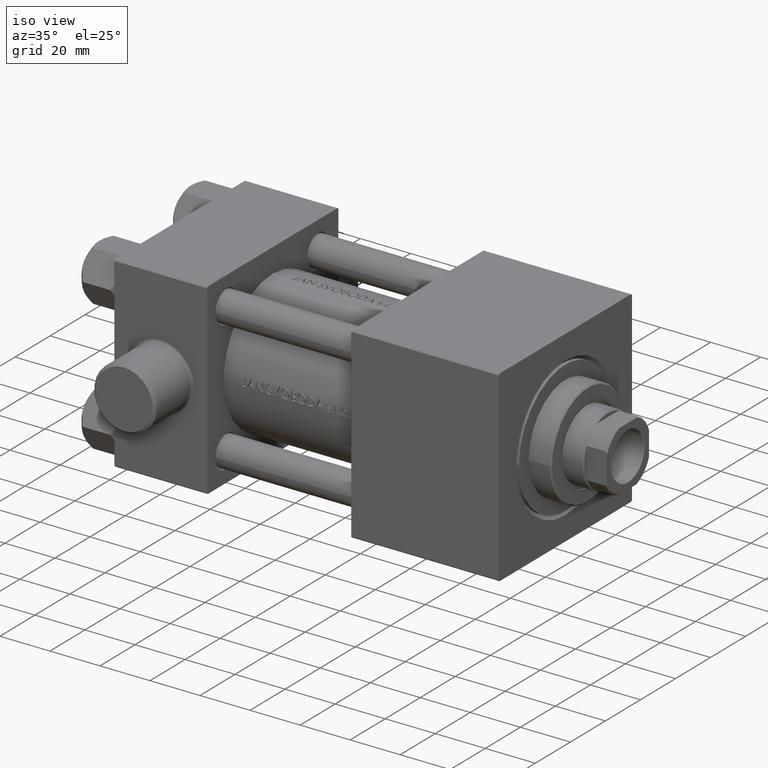
[diagram: clean part render]
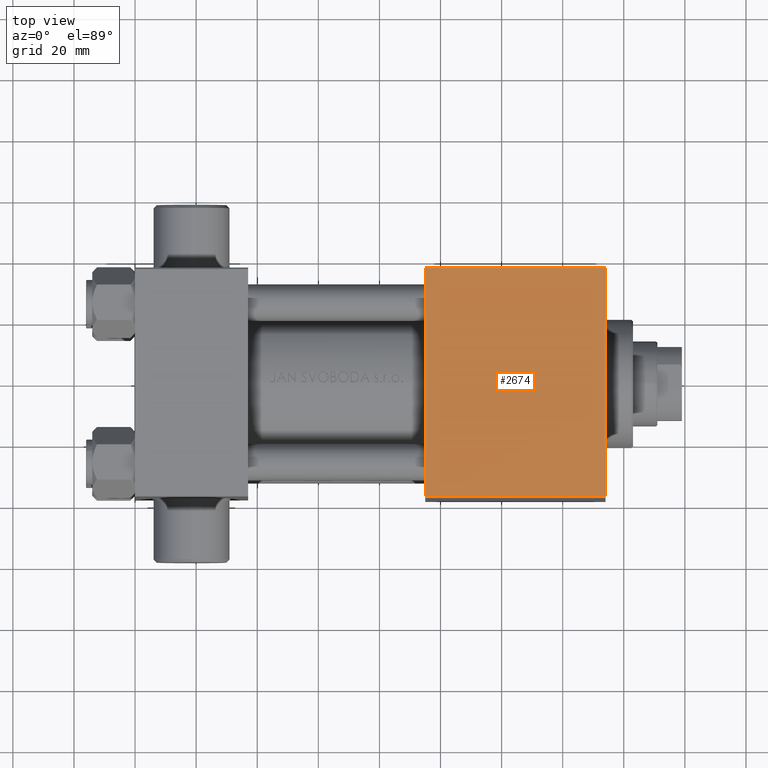
[diagram: tour spotlight — one face highlighted and labeled with its STEP entity id]
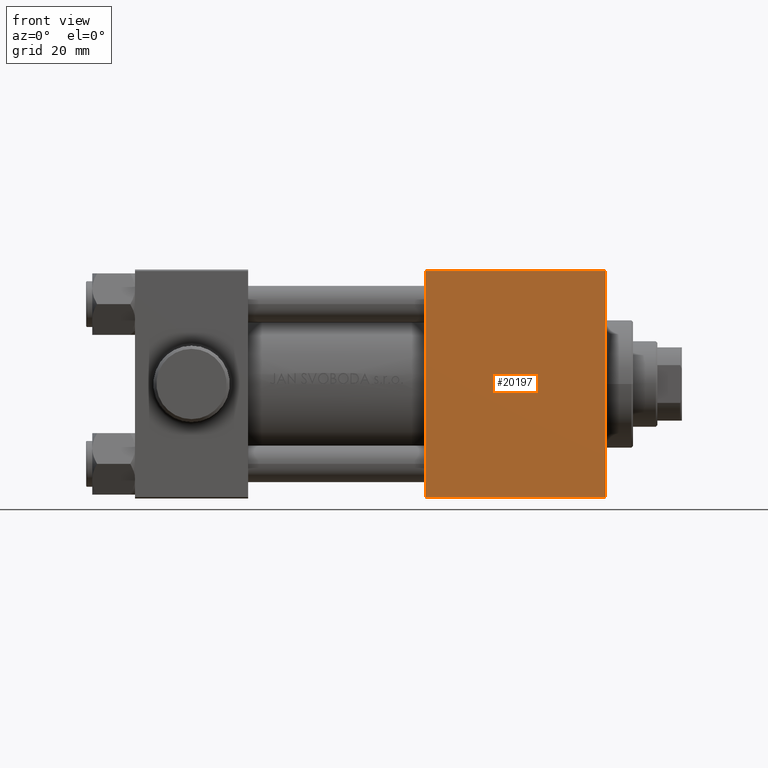
[diagram: tour spotlight — one face highlighted and labeled with its STEP entity id]
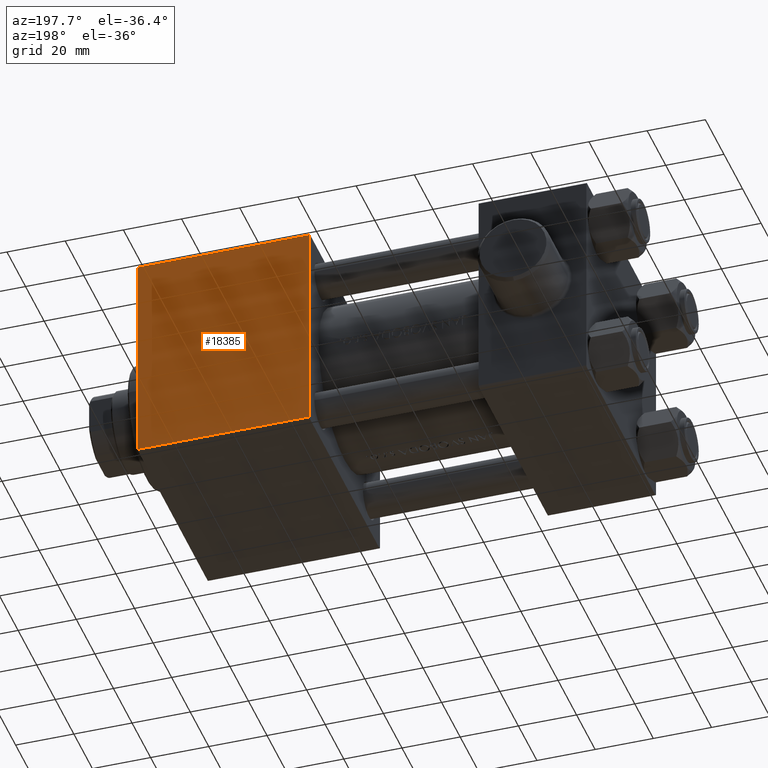
[diagram: tour spotlight — one face highlighted and labeled with its STEP entity id]
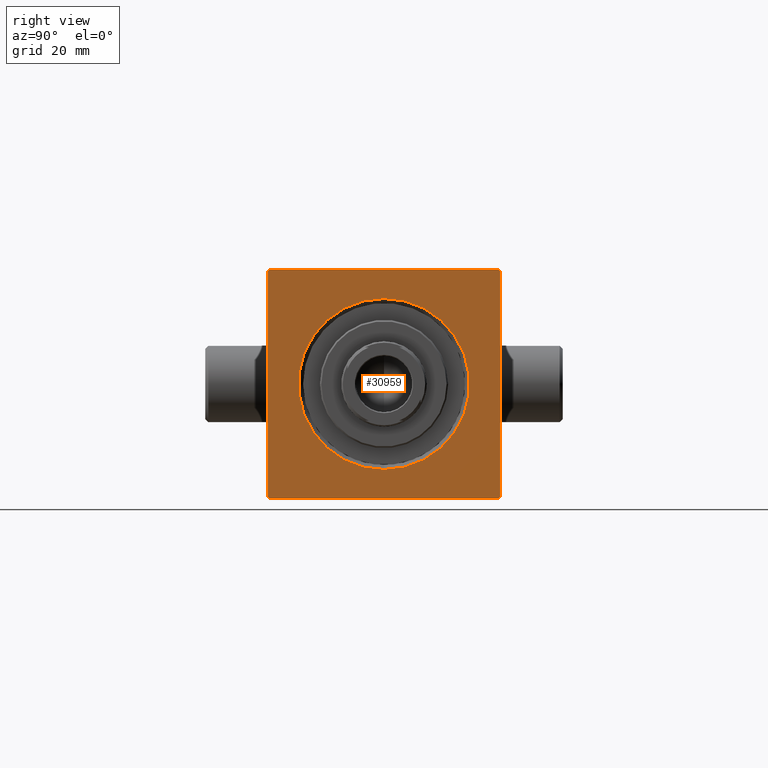
[diagram: tour spotlight — one face highlighted and labeled with its STEP entity id]
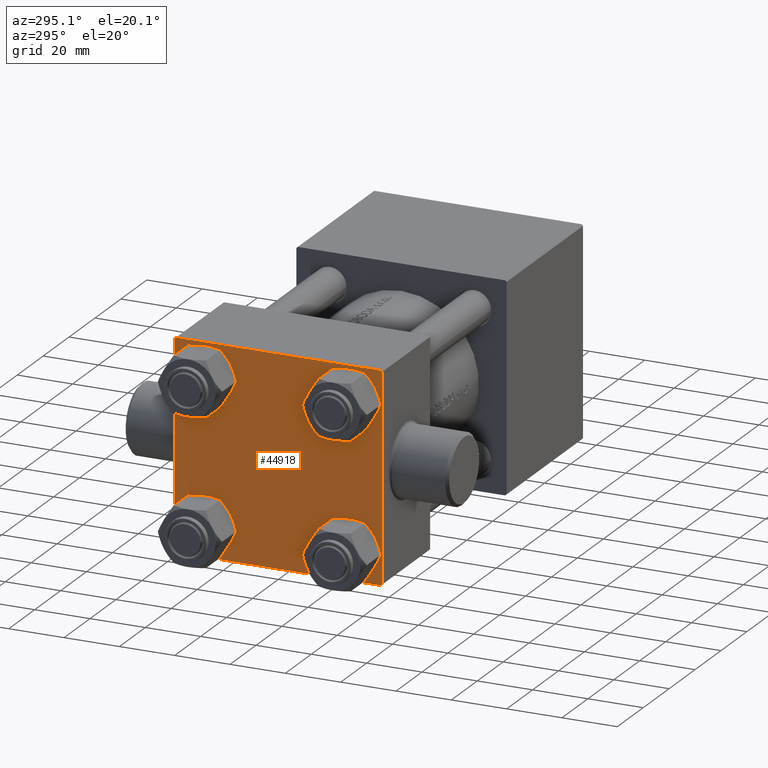
[diagram: tour spotlight — one face highlighted and labeled with its STEP entity id]
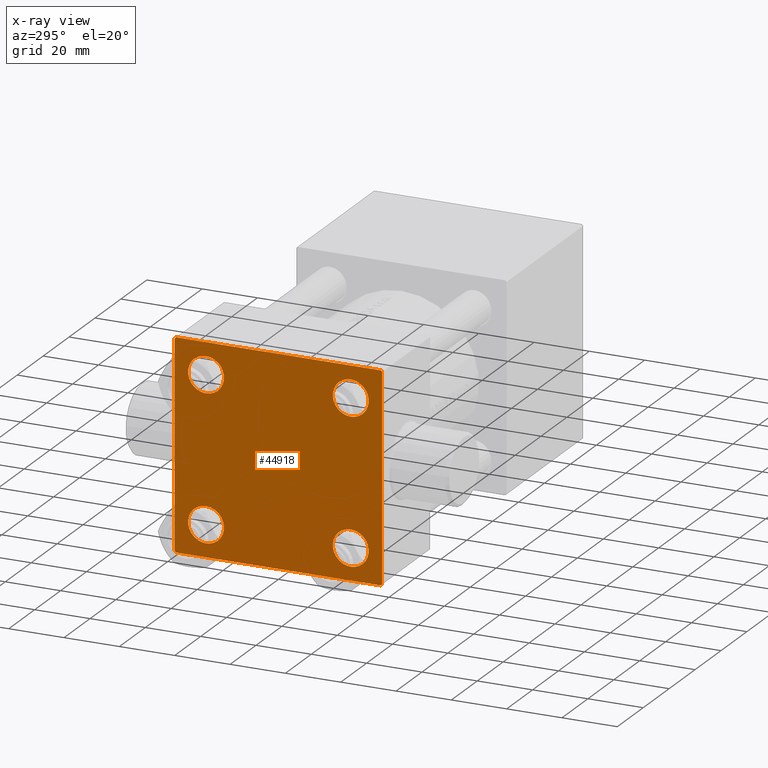
[diagram: x-ray of the same camera — body ghosted, this tour face saturated]
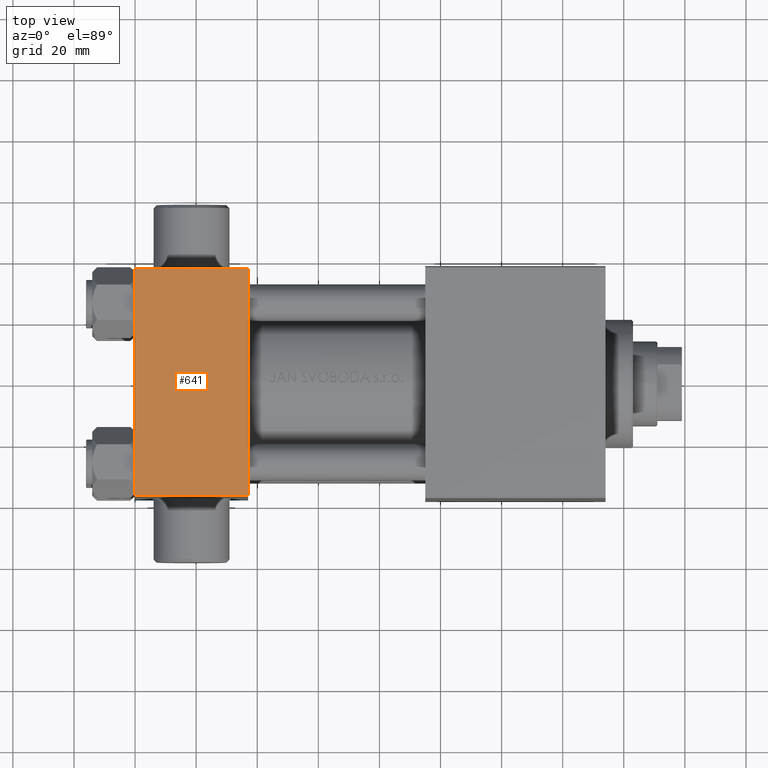
[diagram: tour spotlight — one face highlighted and labeled with its STEP entity id]
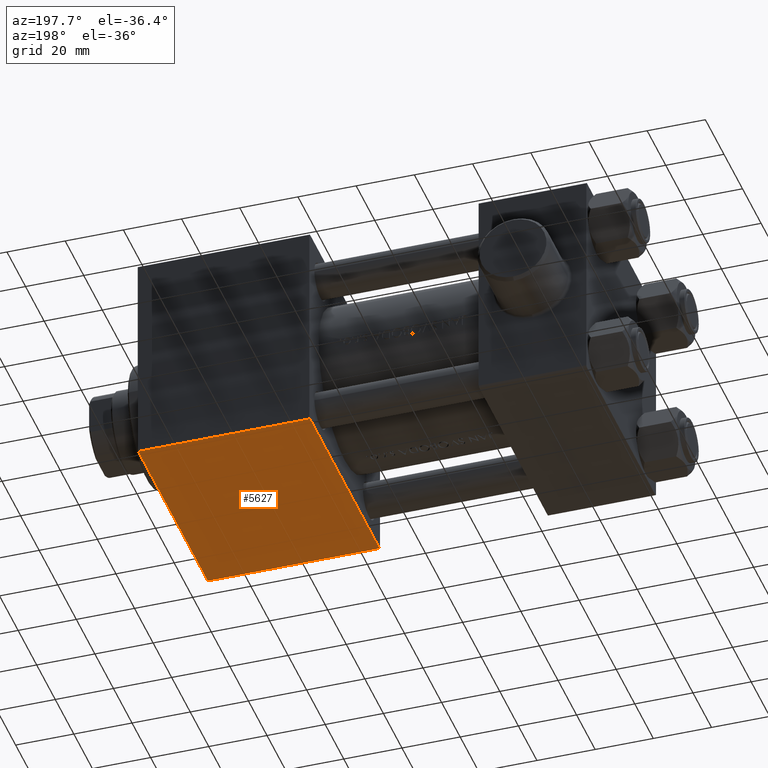
[diagram: tour spotlight — one face highlighted and labeled with its STEP entity id]
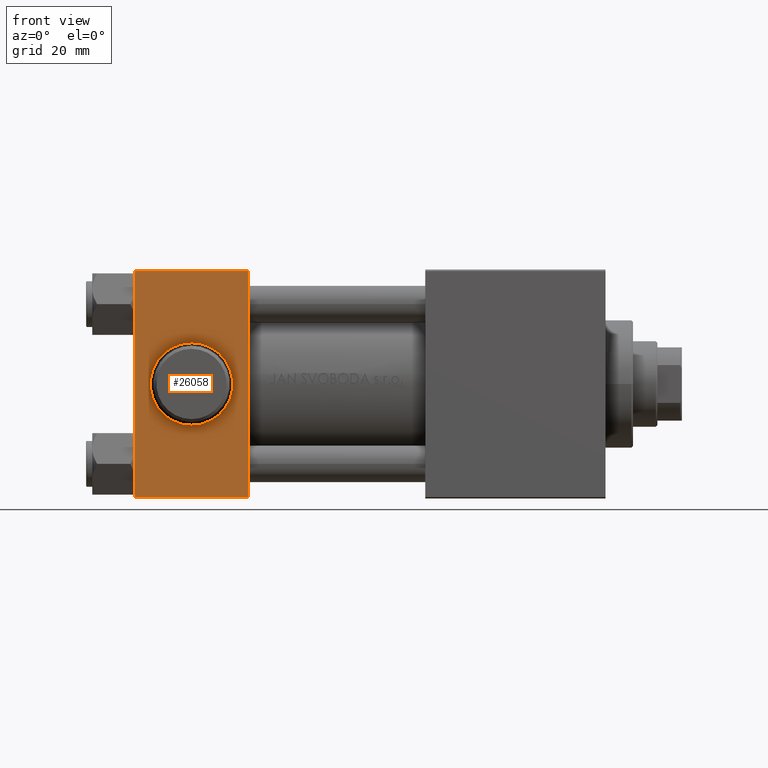
[diagram: tour spotlight — one face highlighted and labeled with its STEP entity id]
A machine part: a face-by-face anatomy tour. The part has 1057 B-rep faces; the first image is the clean iso view, then the 8 largest visible faces are spotlighted one at a time (largest first), each with its STEP entity span.

Face 1 — top view, entity #2674. In plain terms, the highlighted planar face has unit normal (0, 0, -1).
Definition (entity closure, byte-faithful):
#2674 = ADVANCED_FACE ( 'NONE', ( #45476 ), #3592, .F. ) ;
#3592 = PLANE ( 'NONE',  #46206 ) ;
#4361 = LINE ( 'NONE', #32205, #23169 ) ;
#5219 = ORIENTED_EDGE ( 'NONE', *, *, #24112, .T. ) ;
#5784 = DIRECTION ( 'NONE',  ( 1.000000000000000000, 0.000000000000000000, 0.000000000000000000 ) ) ;
#6253 = CARTESIAN_POINT ( 'NONE',  ( 154.0000000000000000, 38.00000000000000000, 37.50000000000000711 ) ) ;
#9294 = LINE ( 'NONE', #23544, #22207 ) ;
#11278 = EDGE_CURVE ( 'NONE', #35255, #27404, #41551, .T. ) ;
#11332 = EDGE_CURVE ( 'NONE', #22699, #27404, #9294, .T. ) ;
#13426 = CARTESIAN_POINT ( 'NONE',  ( 154.0000000000000000, 38.00000000000000000, 37.50000000000000711 ) ) ;
#13968 = CARTESIAN_POINT ( 'NONE',  ( 154.0000000000000000, 37.50000000000002842, 37.50000000000000711 ) ) ;
#14007 = VECTOR ( 'NONE', #38035, 1000.000000000000000 ) ;
#14992 = VECTOR ( 'NONE', #19175, 1000.000000000000000 ) ;
#19175 = DIRECTION ( 'NONE',  ( -1.000000000000000000, 0.000000000000000000, 0.000000000000000000 ) ) ;
#20934 = VERTEX_POINT ( 'NONE', #45438 ) ;
#21586 = DIRECTION ( 'NONE',  ( 0.000000000000000000, 9.130123557772669567E-17, -1.000000000000000000 ) ) ;
#22207 = VECTOR ( 'NONE', #5784, 1000.000000000000000 ) ;
#22699 = VERTEX_POINT ( 'NONE', #27256 ) ;
#23169 = VECTOR ( 'NONE', #25870, 1000.000000000000000 ) ;
#23544 = CARTESIAN_POINT ( 'NONE',  ( 154.0000000000000000, -37.50000000000002842, 37.50000000000000000 ) ) ;
#24112 = EDGE_CURVE ( 'NONE', #35255, #20934, #40454, .T. ) ;
#25870 = DIRECTION ( 'NONE',  ( 0.000000000000000000, -1.000000000000000000, -9.130123557772669567E-17 ) ) ;
#25946 = EDGE_CURVE ( 'NONE', #20934, #22699, #4361, .T. ) ;
#27256 = CARTESIAN_POINT ( 'NONE',  ( 95.00000000000000000, -37.50000000000002842, 37.50000000000000000 ) ) ;
#27404 = VERTEX_POINT ( 'NONE', #43308 ) ;
#29936 = ORIENTED_EDGE ( 'NONE', *, *, #25946, .T. ) ;
#32205 = CARTESIAN_POINT ( 'NONE',  ( 95.00000000000000000, 38.00000000000000000, 37.50000000000000711 ) ) ;
#35255 = VERTEX_POINT ( 'NONE', #13968 ) ;
#36007 = CARTESIAN_POINT ( 'NONE',  ( 95.00000000000000000, 37.50000000000002842, 37.50000000000000711 ) ) ;
#37923 = EDGE_LOOP ( 'NONE', ( #29936, #40770, #43279, #5219 ) ) ;
#38035 = DIRECTION ( 'NONE',  ( 0.000000000000000000, -1.000000000000000000, -9.130123557772669567E-17 ) ) ;
#40454 = LINE ( 'NONE', #36007, #14992 ) ;
#40770 = ORIENTED_EDGE ( 'NONE', *, *, #11332, .T. ) ;
#41551 = LINE ( 'NONE', #6253, #14007 ) ;
#42872 = DIRECTION ( 'NONE',  ( 0.000000000000000000, 1.000000000000000000, 9.130123557772669567E-17 ) ) ;
#43279 = ORIENTED_EDGE ( 'NONE', *, *, #11278, .F. ) ;
#43308 = CARTESIAN_POINT ( 'NONE',  ( 154.0000000000000000, -37.50000000000002842, 37.50000000000000000 ) ) ;
#45438 = CARTESIAN_POINT ( 'NONE',  ( 95.00000000000000000, 37.50000000000002842, 37.50000000000000711 ) ) ;
#45476 = FACE_OUTER_BOUND ( 'NONE', #37923, .T. ) ;
#46206 = AXIS2_PLACEMENT_3D ( 'NONE', #13426, #21586, #42872 ) ;

Face 2 — front view, entity #20197. In plain terms, the highlighted planar face has unit normal (0, 1, -0).
Definition (entity closure, byte-faithful):
#781 = DIRECTION ( 'NONE',  ( 0.000000000000000000, -9.251858538542971581E-17, -1.000000000000000000 ) ) ;
#2131 = DIRECTION ( 'NONE',  ( 0.000000000000000000, 1.000000000000000000, -9.251858538542971581E-17 ) ) ;
#2218 = VERTEX_POINT ( 'NONE', #35935 ) ;
#2368 = FACE_OUTER_BOUND ( 'NONE', #43804, .T. ) ;
#2753 = CARTESIAN_POINT ( 'NONE',  ( 154.0000000000000000, -38.00000000000000711, -37.00000000000001421 ) ) ;
#5029 = DIRECTION ( 'NONE',  ( -1.000000000000000000, 0.000000000000000000, 0.000000000000000000 ) ) ;
#5644 = DIRECTION ( 'NONE',  ( 0.000000000000000000, 9.251858538542971581E-17, 1.000000000000000000 ) ) ;
#6710 = CARTESIAN_POINT ( 'NONE',  ( 154.0000000000000000, -38.00000000000000711, -37.00000000000001421 ) ) ;
#7422 = AXIS2_PLACEMENT_3D ( 'NONE', #20132, #2131, #5644 ) ;
#7709 = LINE ( 'NONE', #18467, #17430 ) ;
#8146 = EDGE_CURVE ( 'NONE', #2218, #25390, #25341, .T. ) ;
#9329 = EDGE_CURVE ( 'NONE', #2218, #22866, #33765, .T. ) ;
#17430 = VECTOR ( 'NONE', #44191, 1000.000000000000000 ) ;
#18467 = CARTESIAN_POINT ( 'NONE',  ( 95.00000000000000000, -38.00000000000000000, 37.50000000000000000 ) ) ;
#20132 = CARTESIAN_POINT ( 'NONE',  ( 154.0000000000000000, -38.00000000000000000, 37.50000000000000000 ) ) ;
#20197 = ADVANCED_FACE ( 'NONE', ( #2368 ), #37660, .F. ) ;
#22866 = VERTEX_POINT ( 'NONE', #36560 ) ;
#24095 = VECTOR ( 'NONE', #781, 1000.000000000000000 ) ;
#25341 = LINE ( 'NONE', #33050, #24095 ) ;
#25390 = VERTEX_POINT ( 'NONE', #6710 ) ;
#25789 = VERTEX_POINT ( 'NONE', #37230 ) ;
#27454 = ORIENTED_EDGE ( 'NONE', *, *, #39614, .T. ) ;
#29808 = CARTESIAN_POINT ( 'NONE',  ( 154.0000000000000000, -38.00000000000000000, 37.00000000000002842 ) ) ;
#33050 = CARTESIAN_POINT ( 'NONE',  ( 154.0000000000000000, -38.00000000000000000, 37.50000000000000000 ) ) ;
#33550 = EDGE_CURVE ( 'NONE', #22866, #25789, #7709, .T. ) ;
#33765 = LINE ( 'NONE', #29808, #34846 ) ;
#34770 = LINE ( 'NONE', #2753, #40381 ) ;
#34846 = VECTOR ( 'NONE', #5029, 1000.000000000000000 ) ;
#35935 = CARTESIAN_POINT ( 'NONE',  ( 154.0000000000000000, -38.00000000000000000, 37.00000000000002842 ) ) ;
#36560 = CARTESIAN_POINT ( 'NONE',  ( 95.00000000000000000, -38.00000000000000000, 37.00000000000002842 ) ) ;
#37230 = CARTESIAN_POINT ( 'NONE',  ( 95.00000000000000000, -38.00000000000000711, -37.00000000000001421 ) ) ;
#37660 = PLANE ( 'NONE',  #7422 ) ;
#39614 = EDGE_CURVE ( 'NONE', #25789, #25390, #34770, .T. ) ;
#40381 = VECTOR ( 'NONE', #45092, 1000.000000000000000 ) ;
#40855 = ORIENTED_EDGE ( 'NONE', *, *, #33550, .T. ) ;
#41669 = ORIENTED_EDGE ( 'NONE', *, *, #9329, .T. ) ;
#43804 = EDGE_LOOP ( 'NONE', ( #40855, #27454, #44085, #41669 ) ) ;
#44085 = ORIENTED_EDGE ( 'NONE', *, *, #8146, .F. ) ;
#44191 = DIRECTION ( 'NONE',  ( 0.000000000000000000, -9.251858538542971581E-17, -1.000000000000000000 ) ) ;
#45092 = DIRECTION ( 'NONE',  ( 1.000000000000000000, 0.000000000000000000, 0.000000000000000000 ) ) ;

Face 3 — auxiliary view, entity #18385. In plain terms, the highlighted planar face has unit normal (0, 1, 0).
Definition (entity closure, byte-faithful):
#1647 = CARTESIAN_POINT ( 'NONE',  ( 154.0000000000000000, 38.00000000000000000, 37.00000000000006395 ) ) ;
#1946 = DIRECTION ( 'NONE',  ( -0.000000000000000000, 1.000000000000000000, 0.000000000000000000 ) ) ;
#3200 = VERTEX_POINT ( 'NONE', #23305 ) ;
#4135 = VERTEX_POINT ( 'NONE', #1647 ) ;
#6518 = ORIENTED_EDGE ( 'NONE', *, *, #31131, .T. ) ;
#7835 = ORIENTED_EDGE ( 'NONE', *, *, #18404, .T. ) ;
#9402 = CARTESIAN_POINT ( 'NONE',  ( 154.0000000000000000, 38.00000000000000000, 37.50000000000000711 ) ) ;
#9798 = EDGE_CURVE ( 'NONE', #4135, #18204, #42131, .T. ) ;
#10869 = CARTESIAN_POINT ( 'NONE',  ( 154.0000000000000000, 38.00000000000000000, -37.00000000000000711 ) ) ;
#11860 = AXIS2_PLACEMENT_3D ( 'NONE', #30695, #1946, #41221 ) ;
#13399 = LINE ( 'NONE', #16204, #20844 ) ;
#13608 = DIRECTION ( 'NONE',  ( 0.000000000000000000, 0.000000000000000000, -1.000000000000000000 ) ) ;
#13886 = DIRECTION ( 'NONE',  ( 0.000000000000000000, 0.000000000000000000, -1.000000000000000000 ) ) ;
#16204 = CARTESIAN_POINT ( 'NONE',  ( 154.0000000000000000, 38.00000000000000000, 37.00000000000006395 ) ) ;
#16665 = FACE_OUTER_BOUND ( 'NONE', #43637, .T. ) ;
#16895 = PLANE ( 'NONE',  #11860 ) ;
#17084 = DIRECTION ( 'NONE',  ( -1.000000000000000000, 0.000000000000000000, 0.000000000000000000 ) ) ;
#17151 = CARTESIAN_POINT ( 'NONE',  ( 95.00000000000000000, 38.00000000000000000, 37.50000000000000711 ) ) ;
#17974 = ORIENTED_EDGE ( 'NONE', *, *, #9798, .T. ) ;
#18095 = VECTOR ( 'NONE', #17084, 1000.000000000000000 ) ;
#18204 = VERTEX_POINT ( 'NONE', #10869 ) ;
#18385 = ADVANCED_FACE ( 'NONE', ( #16665 ), #16895, .T. ) ;
#18404 = EDGE_CURVE ( 'NONE', #33899, #4135, #13399, .T. ) ;
#19790 = CARTESIAN_POINT ( 'NONE',  ( 95.00000000000000000, 38.00000000000000000, 37.00000000000006395 ) ) ;
#20599 = CARTESIAN_POINT ( 'NONE',  ( 154.0000000000000000, 38.00000000000000000, -37.00000000000000711 ) ) ;
#20718 = VECTOR ( 'NONE', #13608, 1000.000000000000000 ) ;
#20844 = VECTOR ( 'NONE', #41687, 1000.000000000000000 ) ;
#23305 = CARTESIAN_POINT ( 'NONE',  ( 95.00000000000000000, 38.00000000000000000, -37.00000000000000711 ) ) ;
#25565 = VECTOR ( 'NONE', #13886, 1000.000000000000000 ) ;
#30695 = CARTESIAN_POINT ( 'NONE',  ( 154.0000000000000000, 38.00000000000000000, 37.50000000000000711 ) ) ;
#31131 = EDGE_CURVE ( 'NONE', #18204, #3200, #31812, .T. ) ;
#31812 = LINE ( 'NONE', #20599, #18095 ) ;
#33899 = VERTEX_POINT ( 'NONE', #19790 ) ;
#41221 = DIRECTION ( 'NONE',  ( 0.000000000000000000, -0.000000000000000000, 1.000000000000000000 ) ) ;
#41687 = DIRECTION ( 'NONE',  ( 1.000000000000000000, 0.000000000000000000, 0.000000000000000000 ) ) ;
#42131 = LINE ( 'NONE', #9402, #20718 ) ;
#43011 = EDGE_CURVE ( 'NONE', #33899, #3200, #45942, .T. ) ;
#43637 = EDGE_LOOP ( 'NONE', ( #43760, #7835, #17974, #6518 ) ) ;
#43760 = ORIENTED_EDGE ( 'NONE', *, *, #43011, .F. ) ;
#45942 = LINE ( 'NONE', #17151, #25565 ) ;

Face 4 — right view, entity #30959. In plain terms, the highlighted planar face has unit normal (-1, 0, 0).
Definition (entity closure, byte-faithful):
#199 = VERTEX_POINT ( 'NONE', #24886 ) ;
#781 = DIRECTION ( 'NONE',  ( 0.000000000000000000, -9.251858538542971581E-17, -1.000000000000000000 ) ) ;
#1038 = LINE ( 'NONE', #32598, #3217 ) ;
#1441 = DIRECTION ( 'NONE',  ( -1.000000000000000000, -0.000000000000000000, 0.000000000000000000 ) ) ;
#1647 = CARTESIAN_POINT ( 'NONE',  ( 154.0000000000000000, 38.00000000000000000, 37.00000000000006395 ) ) ;
#2218 = VERTEX_POINT ( 'NONE', #35935 ) ;
#3187 = AXIS2_PLACEMENT_3D ( 'NONE', #18758, #1441, #33007 ) ;
#3217 = VECTOR ( 'NONE', #15304, 1000.000000000000114 ) ;
#4135 = VERTEX_POINT ( 'NONE', #1647 ) ;
#5163 = ORIENTED_EDGE ( 'NONE', *, *, #8146, .T. ) ;
#6253 = CARTESIAN_POINT ( 'NONE',  ( 154.0000000000000000, 38.00000000000000000, 37.50000000000000711 ) ) ;
#6710 = CARTESIAN_POINT ( 'NONE',  ( 154.0000000000000000, -38.00000000000000711, -37.00000000000001421 ) ) ;
#6932 = ORIENTED_EDGE ( 'NONE', *, *, #35068, .T. ) ;
#8146 = EDGE_CURVE ( 'NONE', #2218, #25390, #25341, .T. ) ;
#8158 = DIRECTION ( 'NONE',  ( -0.000000000000000000, -0.7071067811865474617, -0.7071067811865474617 ) ) ;
#8446 = ORIENTED_EDGE ( 'NONE', *, *, #9798, .F. ) ;
#8692 = CARTESIAN_POINT ( 'NONE',  ( 154.0000000000000000, -37.50000000000001421, -37.50000000000000000 ) ) ;
#8883 = VERTEX_POINT ( 'NONE', #33973 ) ;
#9402 = CARTESIAN_POINT ( 'NONE',  ( 154.0000000000000000, 38.00000000000000000, 37.50000000000000711 ) ) ;
#9798 = EDGE_CURVE ( 'NONE', #4135, #18204, #42131, .T. ) ;
#9890 = CIRCLE ( 'NONE', #24069, 27.99999999999994316 ) ;
#10869 = CARTESIAN_POINT ( 'NONE',  ( 154.0000000000000000, 38.00000000000000000, -37.00000000000000711 ) ) ;
#11022 = VERTEX_POINT ( 'NONE', #17524 ) ;
#11278 = EDGE_CURVE ( 'NONE', #35255, #27404, #41551, .T. ) ;
#11679 = EDGE_LOOP ( 'NONE', ( #18221, #19891 ) ) ;
#12172 = EDGE_CURVE ( 'NONE', #25390, #18690, #33469, .T. ) ;
#12590 = CARTESIAN_POINT ( 'NONE',  ( 154.0000000000000000, -38.00000000000000000, 37.00000000000002842 ) ) ;
#13046 = LINE ( 'NONE', #26381, #44813 ) ;
#13528 = AXIS2_PLACEMENT_3D ( 'NONE', #17008, #30573, #42034 ) ;
#13608 = DIRECTION ( 'NONE',  ( 0.000000000000000000, 0.000000000000000000, -1.000000000000000000 ) ) ;
#13968 = CARTESIAN_POINT ( 'NONE',  ( 154.0000000000000000, 37.50000000000002842, 37.50000000000000711 ) ) ;
#14007 = VECTOR ( 'NONE', #38035, 1000.000000000000000 ) ;
#15242 = FACE_OUTER_BOUND ( 'NONE', #39760, .T. ) ;
#15304 = DIRECTION ( 'NONE',  ( -0.000000000000000000, 0.7071067811865474617, 0.7071067811865474617 ) ) ;
#16142 = ORIENTED_EDGE ( 'NONE', *, *, #32678, .T. ) ;
#17008 = CARTESIAN_POINT ( 'NONE',  ( 154.0000000000000000, 0.000000000000000000, 0.000000000000000000 ) ) ;
#17252 = CARTESIAN_POINT ( 'NONE',  ( 154.0000000000000000, -37.50000000000001421, -37.50000000000000000 ) ) ;
#17524 = CARTESIAN_POINT ( 'NONE',  ( 154.0000000000000000, 37.50000000000000000, -37.50000000000000711 ) ) ;
#18204 = VERTEX_POINT ( 'NONE', #10869 ) ;
#18221 = ORIENTED_EDGE ( 'NONE', *, *, #39619, .T. ) ;
#18690 = VERTEX_POINT ( 'NONE', #17252 ) ;
#18758 = CARTESIAN_POINT ( 'NONE',  ( 154.0000000000000000, 0.000000000000000000, 0.000000000000000000 ) ) ;
#19819 = CARTESIAN_POINT ( 'NONE',  ( 154.0000000000000000, 37.50000000000002842, 37.50000000000000711 ) ) ;
#19891 = ORIENTED_EDGE ( 'NONE', *, *, #31180, .T. ) ;
#20524 = DIRECTION ( 'NONE',  ( 0.000000000000000000, -0.7071067811865671127, 0.7071067811865279218 ) ) ;
#20718 = VECTOR ( 'NONE', #13608, 1000.000000000000000 ) ;
#21464 = EDGE_CURVE ( 'NONE', #11022, #18690, #13046, .T. ) ;
#21510 = CARTESIAN_POINT ( 'NONE',  ( 154.0000000000000000, 0.000000000000000000, 0.000000000000000000 ) ) ;
#22463 = ORIENTED_EDGE ( 'NONE', *, *, #21464, .F. ) ;
#24069 = AXIS2_PLACEMENT_3D ( 'NONE', #21510, #42106, #28310 ) ;
#24095 = VECTOR ( 'NONE', #781, 1000.000000000000000 ) ;
#24886 = CARTESIAN_POINT ( 'NONE',  ( 154.0000000000000000, 3.429011037612582176E-15, 27.99999999999994316 ) ) ;
#25341 = LINE ( 'NONE', #33050, #24095 ) ;
#25390 = VERTEX_POINT ( 'NONE', #6710 ) ;
#25930 = LINE ( 'NONE', #12590, #28524 ) ;
#26381 = CARTESIAN_POINT ( 'NONE',  ( 154.0000000000000000, 38.00000000000000000, -37.50000000000000711 ) ) ;
#27068 = LINE ( 'NONE', #19819, #27912 ) ;
#27404 = VERTEX_POINT ( 'NONE', #43308 ) ;
#27912 = VECTOR ( 'NONE', #20524, 1000.000000000000000 ) ;
#28310 = DIRECTION ( 'NONE',  ( 0.000000000000000000, 0.000000000000000000, 1.000000000000000000 ) ) ;
#28524 = VECTOR ( 'NONE', #8158, 1000.000000000000114 ) ;
#29281 = PLANE ( 'NONE',  #3187 ) ;
#29973 = EDGE_CURVE ( 'NONE', #27404, #2218, #25930, .T. ) ;
#30573 = DIRECTION ( 'NONE',  ( -1.000000000000000000, -0.000000000000000000, 0.000000000000000000 ) ) ;
#30959 = ADVANCED_FACE ( 'NONE', ( #43546, #15242 ), #29281, .F. ) ;
#31180 = EDGE_CURVE ( 'NONE', #199, #8883, #9890, .T. ) ;
#32598 = CARTESIAN_POINT ( 'NONE',  ( 154.0000000000000000, 38.00000000000000000, -37.00000000000000711 ) ) ;
#32678 = EDGE_CURVE ( 'NONE', #11022, #18204, #1038, .T. ) ;
#33007 = DIRECTION ( 'NONE',  ( 0.000000000000000000, 0.000000000000000000, 1.000000000000000000 ) ) ;
#33050 = CARTESIAN_POINT ( 'NONE',  ( 154.0000000000000000, -38.00000000000000000, 37.50000000000000000 ) ) ;
#33469 = LINE ( 'NONE', #8692, #34812 ) ;
#33702 = DIRECTION ( 'NONE',  ( 0.000000000000000000, 0.7071067811865524577, -0.7071067811865426878 ) ) ;
#33973 = CARTESIAN_POINT ( 'NONE',  ( 154.0000000000000000, 0.000000000000000000, -27.99999999999994316 ) ) ;
#34669 = ORIENTED_EDGE ( 'NONE', *, *, #12172, .T. ) ;
#34812 = VECTOR ( 'NONE', #33702, 1000.000000000000000 ) ;
#35068 = EDGE_CURVE ( 'NONE', #4135, #35255, #27068, .T. ) ;
#35255 = VERTEX_POINT ( 'NONE', #13968 ) ;
#35935 = CARTESIAN_POINT ( 'NONE',  ( 154.0000000000000000, -38.00000000000000000, 37.00000000000002842 ) ) ;
#38035 = DIRECTION ( 'NONE',  ( 0.000000000000000000, -1.000000000000000000, -9.130123557772669567E-17 ) ) ;
#38969 = ORIENTED_EDGE ( 'NONE', *, *, #11278, .T. ) ;
#38990 = ORIENTED_EDGE ( 'NONE', *, *, #29973, .T. ) ;
#39619 = EDGE_CURVE ( 'NONE', #8883, #199, #41120, .T. ) ;
#39760 = EDGE_LOOP ( 'NONE', ( #5163, #34669, #22463, #16142, #8446, #6932, #38969, #38990 ) ) ;
#41120 = CIRCLE ( 'NONE', #13528, 27.99999999999994316 ) ;
#41551 = LINE ( 'NONE', #6253, #14007 ) ;
#41558 = DIRECTION ( 'NONE',  ( 0.000000000000000000, -1.000000000000000000, 9.130123557772667102E-17 ) ) ;
#42034 = DIRECTION ( 'NONE',  ( 0.000000000000000000, 0.000000000000000000, 1.000000000000000000 ) ) ;
#42106 = DIRECTION ( 'NONE',  ( -1.000000000000000000, -0.000000000000000000, 0.000000000000000000 ) ) ;
#42131 = LINE ( 'NONE', #9402, #20718 ) ;
#43308 = CARTESIAN_POINT ( 'NONE',  ( 154.0000000000000000, -37.50000000000002842, 37.50000000000000000 ) ) ;
#43546 = FACE_BOUND ( 'NONE', #11679, .T. ) ;
#44813 = VECTOR ( 'NONE', #41558, 1000.000000000000000 ) ;

Face 5 — auxiliary view, entity #44918. An x-ray twin of the same camera follows (body ghosted, this face saturated) — the face is partly hidden behind the body. In plain terms, the highlighted planar face has unit normal (-1, 0, 0).
Definition (entity closure, byte-faithful):
#5 = CIRCLE ( 'NONE', #13472, 6.500000000000015987 ) ;
#230 = DIRECTION ( 'NONE',  ( 0.000000000000000000, 0.000000000000000000, 1.000000000000000000 ) ) ;
#334 = ORIENTED_EDGE ( 'NONE', *, *, #16383, .T. ) ;
#942 = DIRECTION ( 'NONE',  ( 0.000000000000000000, 0.000000000000000000, 1.000000000000000000 ) ) ;
#1243 = VERTEX_POINT ( 'NONE', #44293 ) ;
#2133 = CARTESIAN_POINT ( 'NONE',  ( 0.000000000000000000, -37.50000000000000711, 37.49999999999999289 ) ) ;
#2324 = CARTESIAN_POINT ( 'NONE',  ( 0.000000000000000000, -37.50000000000000711, 36.99999999999999289 ) ) ;
#2681 = VERTEX_POINT ( 'NONE', #24867 ) ;
#2758 = AXIS2_PLACEMENT_3D ( 'NONE', #45284, #9498, #13241 ) ;
#2796 = CARTESIAN_POINT ( 'NONE',  ( 0.000000000000000000, 26.14999999999999858, -32.65000000000001990 ) ) ;
#3091 = ORIENTED_EDGE ( 'NONE', *, *, #3116, .T. ) ;
#3116 = EDGE_CURVE ( 'NONE', #1243, #9773, #9740, .T. ) ;
#4384 = FACE_BOUND ( 'NONE', #32631, .T. ) ;
#4477 = ORIENTED_EDGE ( 'NONE', *, *, #18518, .T. ) ;
#5317 = FACE_BOUND ( 'NONE', #12360, .T. ) ;
#5672 = ORIENTED_EDGE ( 'NONE', *, *, #29605, .F. ) ;
#5688 = AXIS2_PLACEMENT_3D ( 'NONE', #24771, #7005, #17755 ) ;
#6190 = CARTESIAN_POINT ( 'NONE',  ( 0.000000000000000000, 36.99999999999997868, -37.50000000000000000 ) ) ;
#6298 = CARTESIAN_POINT ( 'NONE',  ( 0.000000000000000000, 26.14999999999999858, 32.65000000000002700 ) ) ;
#6338 = DIRECTION ( 'NONE',  ( 0.000000000000000000, 9.251858538542971581E-17, -1.000000000000000000 ) ) ;
#6603 = VERTEX_POINT ( 'NONE', #6190 ) ;
#6948 = VERTEX_POINT ( 'NONE', #2796 ) ;
#7005 = DIRECTION ( 'NONE',  ( 1.000000000000000000, -0.000000000000000000, 0.000000000000000000 ) ) ;
#7076 = EDGE_CURVE ( 'NONE', #11533, #38853, #5, .T. ) ;
#7201 = EDGE_CURVE ( 'NONE', #38853, #11533, #35118, .T. ) ;
#7303 = CARTESIAN_POINT ( 'NONE',  ( 0.000000000000000000, 36.99999999999999289, 37.50000000000000000 ) ) ;
#7798 = ORIENTED_EDGE ( 'NONE', *, *, #12188, .F. ) ;
#7925 = CIRCLE ( 'NONE', #5688, 6.500000000000023093 ) ;
#8124 = DIRECTION ( 'NONE',  ( -1.000000000000000000, 0.000000000000000000, -0.000000000000000000 ) ) ;
#8591 = PLANE ( 'NONE',  #38314 ) ;
#8962 = CARTESIAN_POINT ( 'NONE',  ( 0.000000000000000000, 37.49999999999999289, 37.50000000000000000 ) ) ;
#9386 = LINE ( 'NONE', #2133, #10202 ) ;
#9498 = DIRECTION ( 'NONE',  ( 1.000000000000000000, -0.000000000000000000, 0.000000000000000000 ) ) ;
#9718 = VERTEX_POINT ( 'NONE', #44033 ) ;
#9740 = LINE ( 'NONE', #34976, #24578 ) ;
#9773 = VERTEX_POINT ( 'NONE', #46121 ) ;
#10202 = VECTOR ( 'NONE', #6338, 1000.000000000000000 ) ;
#10385 = LINE ( 'NONE', #15039, #22882 ) ;
#10906 = CARTESIAN_POINT ( 'NONE',  ( 0.000000000000000000, -26.14999999999999147, -26.15000000000000924 ) ) ;
#11167 = EDGE_CURVE ( 'NONE', #24403, #13328, #7925, .T. ) ;
#11345 = CARTESIAN_POINT ( 'NONE',  ( 0.000000000000000000, -26.14999999999999147, 26.15000000000000924 ) ) ;
#11533 = VERTEX_POINT ( 'NONE', #16020 ) ;
#12188 = EDGE_CURVE ( 'NONE', #37868, #9773, #9386, .T. ) ;
#12280 = EDGE_CURVE ( 'NONE', #36256, #42092, #44551, .T. ) ;
#12360 = EDGE_LOOP ( 'NONE', ( #32515, #30600 ) ) ;
#12547 = EDGE_CURVE ( 'NONE', #2681, #6948, #28854, .T. ) ;
#12558 = FACE_BOUND ( 'NONE', #28920, .T. ) ;
#12654 = EDGE_CURVE ( 'NONE', #42092, #36256, #25139, .T. ) ;
#13241 = DIRECTION ( 'NONE',  ( 0.000000000000000000, 0.000000000000000000, 1.000000000000000000 ) ) ;
#13328 = VERTEX_POINT ( 'NONE', #20838 ) ;
#13472 = AXIS2_PLACEMENT_3D ( 'NONE', #13729, #46014, #20513 ) ;
#13729 = CARTESIAN_POINT ( 'NONE',  ( 0.000000000000000000, -26.14999999999999147, -26.15000000000000924 ) ) ;
#13931 = EDGE_CURVE ( 'NONE', #13328, #24403, #30377, .T. ) ;
#15039 = CARTESIAN_POINT ( 'NONE',  ( 0.000000000000000000, 37.49999999999999289, 37.50000000000000000 ) ) ;
#15972 = ORIENTED_EDGE ( 'NONE', *, *, #19927, .T. ) ;
#15975 = DIRECTION ( 'NONE',  ( 0.000000000000000000, -1.000000000000000000, -9.251858538542971581E-17 ) ) ;
#16020 = CARTESIAN_POINT ( 'NONE',  ( 0.000000000000000000, -26.14999999999999147, -19.64999999999999503 ) ) ;
#16195 = AXIS2_PLACEMENT_3D ( 'NONE', #27503, #16512, #41533 ) ;
#16260 = AXIS2_PLACEMENT_3D ( 'NONE', #33204, #32973, #942 ) ;
#16383 = EDGE_CURVE ( 'NONE', #6948, #2681, #36400, .T. ) ;
#16512 = DIRECTION ( 'NONE',  ( 1.000000000000000000, -0.000000000000000000, 0.000000000000000000 ) ) ;
#17755 = DIRECTION ( 'NONE',  ( 0.000000000000000000, 0.000000000000000000, 1.000000000000000000 ) ) ;
#17888 = CARTESIAN_POINT ( 'NONE',  ( 0.000000000000000000, -26.14999999999999147, 32.65000000000003411 ) ) ;
#18141 = ORIENTED_EDGE ( 'NONE', *, *, #27543, .T. ) ;
#18518 = EDGE_CURVE ( 'NONE', #35510, #9718, #43941, .T. ) ;
#18965 = VECTOR ( 'NONE', #23412, 1000.000000000000114 ) ;
#19342 = DIRECTION ( 'NONE',  ( -0.000000000000000000, 0.000000000000000000, 1.000000000000000000 ) ) ;
#19375 = DIRECTION ( 'NONE',  ( 0.000000000000000000, 0.7071067811865474617, -0.7071067811865474617 ) ) ;
#19600 = ORIENTED_EDGE ( 'NONE', *, *, #38194, .T. ) ;
#19927 = EDGE_CURVE ( 'NONE', #37868, #24648, #42914, .T. ) ;
#20107 = EDGE_LOOP ( 'NONE', ( #19600, #21015, #18141, #3091, #7798, #15972, #5672, #4477 ) ) ;
#20513 = DIRECTION ( 'NONE',  ( 0.000000000000000000, 0.000000000000000000, 1.000000000000000000 ) ) ;
#20838 = CARTESIAN_POINT ( 'NONE',  ( 0.000000000000000000, 26.14999999999999858, 19.64999999999998437 ) ) ;
#21015 = ORIENTED_EDGE ( 'NONE', *, *, #34177, .T. ) ;
#21083 = ORIENTED_EDGE ( 'NONE', *, *, #7076, .T. ) ;
#21994 = ORIENTED_EDGE ( 'NONE', *, *, #13931, .T. ) ;
#22882 = VECTOR ( 'NONE', #29310, 1000.000000000000000 ) ;
#23046 = CARTESIAN_POINT ( 'NONE',  ( 0.000000000000000000, -26.14999999999999147, 19.64999999999999147 ) ) ;
#23080 = CARTESIAN_POINT ( 'NONE',  ( 0.000000000000000000, -37.00000000000000711, 37.49999999999999289 ) ) ;
#23412 = DIRECTION ( 'NONE',  ( -0.000000000000000000, -0.7071067811865474617, -0.7071067811865474617 ) ) ;
#24403 = VERTEX_POINT ( 'NONE', #6298 ) ;
#24578 = VECTOR ( 'NONE', #45064, 1000.000000000000000 ) ;
#24648 = VERTEX_POINT ( 'NONE', #23080 ) ;
#24681 = AXIS2_PLACEMENT_3D ( 'NONE', #10906, #36355, #35898 ) ;
#24771 = CARTESIAN_POINT ( 'NONE',  ( 0.000000000000000000, 26.14999999999999858, 26.15000000000000213 ) ) ;
#24867 = CARTESIAN_POINT ( 'NONE',  ( 0.000000000000000000, 26.14999999999999858, -19.64999999999998792 ) ) ;
#25139 = CIRCLE ( 'NONE', #28126, 6.500000000000023093 ) ;
#25421 = VECTOR ( 'NONE', #26913, 1000.000000000000000 ) ;
#26031 = VERTEX_POINT ( 'NONE', #29391 ) ;
#26124 = FACE_BOUND ( 'NONE', #39706, .T. ) ;
#26913 = DIRECTION ( 'NONE',  ( 0.000000000000000000, -1.000000000000000000, -9.251858538542972814E-17 ) ) ;
#27503 = CARTESIAN_POINT ( 'NONE',  ( 0.000000000000000000, 26.14999999999999858, 26.15000000000000213 ) ) ;
#27543 = EDGE_CURVE ( 'NONE', #6603, #1243, #43775, .T. ) ;
#28126 = AXIS2_PLACEMENT_3D ( 'NONE', #11345, #28658, #28881 ) ;
#28658 = DIRECTION ( 'NONE',  ( 1.000000000000000000, -0.000000000000000000, 0.000000000000000000 ) ) ;
#28852 = ORIENTED_EDGE ( 'NONE', *, *, #7201, .T. ) ;
#28854 = CIRCLE ( 'NONE', #2758, 6.500000000000015987 ) ;
#28881 = DIRECTION ( 'NONE',  ( 0.000000000000000000, 0.000000000000000000, 1.000000000000000000 ) ) ;
#28920 = EDGE_LOOP ( 'NONE', ( #38348, #21994 ) ) ;
#29310 = DIRECTION ( 'NONE',  ( 0.000000000000000000, 0.000000000000000000, -1.000000000000000000 ) ) ;
#29391 = CARTESIAN_POINT ( 'NONE',  ( 0.000000000000000000, 37.49999999999999289, -36.99999999999998579 ) ) ;
#29605 = EDGE_CURVE ( 'NONE', #35510, #24648, #37237, .T. ) ;
#29621 = AXIS2_PLACEMENT_3D ( 'NONE', #35310, #42808, #230 ) ;
#29810 = VECTOR ( 'NONE', #38945, 1000.000000000000114 ) ;
#30356 = CARTESIAN_POINT ( 'NONE',  ( 0.000000000000000000, 37.24999999999999289, 37.24999999999999289 ) ) ;
#30377 = CIRCLE ( 'NONE', #16195, 6.500000000000023093 ) ;
#30427 = CARTESIAN_POINT ( 'NONE',  ( 0.000000000000000000, 37.24999999999998579, -37.24999999999998579 ) ) ;
#30600 = ORIENTED_EDGE ( 'NONE', *, *, #12654, .T. ) ;
#30888 = LINE ( 'NONE', #30427, #18965 ) ;
#32515 = ORIENTED_EDGE ( 'NONE', *, *, #12280, .T. ) ;
#32601 = CARTESIAN_POINT ( 'NONE',  ( -0.000000000000000000, -37.25000000000000000, 37.25000000000000000 ) ) ;
#32631 = EDGE_LOOP ( 'NONE', ( #41798, #334 ) ) ;
#32973 = DIRECTION ( 'NONE',  ( 1.000000000000000000, -0.000000000000000000, 0.000000000000000000 ) ) ;
#33204 = CARTESIAN_POINT ( 'NONE',  ( 0.000000000000000000, 26.14999999999999858, -26.15000000000000213 ) ) ;
#34177 = EDGE_CURVE ( 'NONE', #26031, #6603, #30888, .T. ) ;
#34976 = CARTESIAN_POINT ( 'NONE',  ( 0.000000000000000000, -37.24999999999975842, -37.25000000000027001 ) ) ;
#35118 = CIRCLE ( 'NONE', #24681, 6.500000000000015987 ) ;
#35310 = CARTESIAN_POINT ( 'NONE',  ( 0.000000000000000000, -26.14999999999999147, 26.15000000000000924 ) ) ;
#35510 = VERTEX_POINT ( 'NONE', #7303 ) ;
#35898 = DIRECTION ( 'NONE',  ( 0.000000000000000000, 0.000000000000000000, 1.000000000000000000 ) ) ;
#36256 = VERTEX_POINT ( 'NONE', #17888 ) ;
#36355 = DIRECTION ( 'NONE',  ( 1.000000000000000000, -0.000000000000000000, 0.000000000000000000 ) ) ;
#36400 = CIRCLE ( 'NONE', #16260, 6.500000000000015987 ) ;
#37237 = LINE ( 'NONE', #8962, #44182 ) ;
#37323 = CARTESIAN_POINT ( 'NONE',  ( 0.000000000000000000, 0.000000000000000000, 0.000000000000000000 ) ) ;
#37868 = VERTEX_POINT ( 'NONE', #2324 ) ;
#38194 = EDGE_CURVE ( 'NONE', #9718, #26031, #10385, .T. ) ;
#38314 = AXIS2_PLACEMENT_3D ( 'NONE', #37323, #8124, #19342 ) ;
#38348 = ORIENTED_EDGE ( 'NONE', *, *, #11167, .T. ) ;
#38853 = VERTEX_POINT ( 'NONE', #46016 ) ;
#38945 = DIRECTION ( 'NONE',  ( -0.000000000000000000, 0.7071067811865474617, 0.7071067811865474617 ) ) ;
#39706 = EDGE_LOOP ( 'NONE', ( #21083, #28852 ) ) ;
#40259 = CARTESIAN_POINT ( 'NONE',  ( 0.000000000000000000, 37.49999999999999289, -37.50000000000000000 ) ) ;
#40992 = VECTOR ( 'NONE', #19375, 1000.000000000000114 ) ;
#41074 = FACE_OUTER_BOUND ( 'NONE', #20107, .T. ) ;
#41533 = DIRECTION ( 'NONE',  ( 0.000000000000000000, 0.000000000000000000, 1.000000000000000000 ) ) ;
#41798 = ORIENTED_EDGE ( 'NONE', *, *, #12547, .T. ) ;
#42092 = VERTEX_POINT ( 'NONE', #23046 ) ;
#42808 = DIRECTION ( 'NONE',  ( 1.000000000000000000, -0.000000000000000000, 0.000000000000000000 ) ) ;
#42914 = LINE ( 'NONE', #32601, #29810 ) ;
#43775 = LINE ( 'NONE', #40259, #25421 ) ;
#43941 = LINE ( 'NONE', #30356, #40992 ) ;
#44033 = CARTESIAN_POINT ( 'NONE',  ( 0.000000000000000000, 37.49999999999999289, 37.00000000000000000 ) ) ;
#44182 = VECTOR ( 'NONE', #15975, 1000.000000000000000 ) ;
#44293 = CARTESIAN_POINT ( 'NONE',  ( 0.000000000000000000, -37.00000000000002132, -37.50000000000000711 ) ) ;
#44551 = CIRCLE ( 'NONE', #29621, 6.500000000000023093 ) ;
#44918 = ADVANCED_FACE ( 'NONE', ( #5317, #26124, #4384, #12558, #41074 ), #8591, .T. ) ;
#45064 = DIRECTION ( 'NONE',  ( 0.000000000000000000, -0.7071067811865524577, 0.7071067811865426878 ) ) ;
#45284 = CARTESIAN_POINT ( 'NONE',  ( 0.000000000000000000, 26.14999999999999858, -26.15000000000000213 ) ) ;
#46014 = DIRECTION ( 'NONE',  ( 1.000000000000000000, -0.000000000000000000, 0.000000000000000000 ) ) ;
#46016 = CARTESIAN_POINT ( 'NONE',  ( 0.000000000000000000, -26.14999999999999147, -32.65000000000002700 ) ) ;
#46121 = CARTESIAN_POINT ( 'NONE',  ( 0.000000000000000000, -37.50000000000000000, -37.00000000000003553 ) ) ;

Face 6 — top view, entity #641. In plain terms, the highlighted planar face has unit normal (0, 0, -1).
Definition (entity closure, byte-faithful):
#641 = ADVANCED_FACE ( 'NONE', ( #25685 ), #22414, .F. ) ;
#715 = ORIENTED_EDGE ( 'NONE', *, *, #29501, .T. ) ;
#1040 = EDGE_CURVE ( 'NONE', #41134, #30050, #27951, .T. ) ;
#3935 = DIRECTION ( 'NONE',  ( 1.000000000000000000, 0.000000000000000000, 0.000000000000000000 ) ) ;
#5828 = ORIENTED_EDGE ( 'NONE', *, *, #29605, .T. ) ;
#7303 = CARTESIAN_POINT ( 'NONE',  ( 0.000000000000000000, 36.99999999999999289, 37.50000000000000000 ) ) ;
#8962 = CARTESIAN_POINT ( 'NONE',  ( 0.000000000000000000, 37.49999999999999289, 37.50000000000000000 ) ) ;
#11800 = VECTOR ( 'NONE', #38468, 1000.000000000000000 ) ;
#15975 = DIRECTION ( 'NONE',  ( 0.000000000000000000, -1.000000000000000000, -9.251858538542971581E-17 ) ) ;
#16658 = CARTESIAN_POINT ( 'NONE',  ( 37.00000000000000000, 36.99999999999999289, 37.50000000000000000 ) ) ;
#21166 = LINE ( 'NONE', #28636, #25497 ) ;
#22414 = PLANE ( 'NONE',  #25986 ) ;
#22884 = CARTESIAN_POINT ( 'NONE',  ( 37.00000000000000000, -37.00000000000000711, 37.49999999999999289 ) ) ;
#23080 = CARTESIAN_POINT ( 'NONE',  ( 0.000000000000000000, -37.00000000000000711, 37.49999999999999289 ) ) ;
#24489 = EDGE_CURVE ( 'NONE', #24648, #30050, #32230, .T. ) ;
#24648 = VERTEX_POINT ( 'NONE', #23080 ) ;
#25345 = DIRECTION ( 'NONE',  ( -1.000000000000000000, 0.000000000000000000, 0.000000000000000000 ) ) ;
#25497 = VECTOR ( 'NONE', #25345, 1000.000000000000000 ) ;
#25685 = FACE_OUTER_BOUND ( 'NONE', #26925, .T. ) ;
#25986 = AXIS2_PLACEMENT_3D ( 'NONE', #36429, #39950, #26150 ) ;
#26150 = DIRECTION ( 'NONE',  ( 0.000000000000000000, 1.000000000000000000, 9.251858538542971581E-17 ) ) ;
#26925 = EDGE_LOOP ( 'NONE', ( #5828, #35392, #31141, #715 ) ) ;
#27951 = LINE ( 'NONE', #38232, #11800 ) ;
#28636 = CARTESIAN_POINT ( 'NONE',  ( 0.000000000000000000, 36.99999999999999289, 37.50000000000000000 ) ) ;
#28730 = CARTESIAN_POINT ( 'NONE',  ( 37.00000000000000000, -37.00000000000000711, 37.49999999999999289 ) ) ;
#29501 = EDGE_CURVE ( 'NONE', #41134, #35510, #21166, .T. ) ;
#29605 = EDGE_CURVE ( 'NONE', #35510, #24648, #37237, .T. ) ;
#30050 = VERTEX_POINT ( 'NONE', #22884 ) ;
#31141 = ORIENTED_EDGE ( 'NONE', *, *, #1040, .F. ) ;
#32230 = LINE ( 'NONE', #28730, #35180 ) ;
#35180 = VECTOR ( 'NONE', #3935, 1000.000000000000000 ) ;
#35392 = ORIENTED_EDGE ( 'NONE', *, *, #24489, .T. ) ;
#35510 = VERTEX_POINT ( 'NONE', #7303 ) ;
#36429 = CARTESIAN_POINT ( 'NONE',  ( 37.00000000000000000, 37.49999999999999289, 37.50000000000000000 ) ) ;
#37237 = LINE ( 'NONE', #8962, #44182 ) ;
#38232 = CARTESIAN_POINT ( 'NONE',  ( 37.00000000000000000, 37.49999999999999289, 37.50000000000000000 ) ) ;
#38468 = DIRECTION ( 'NONE',  ( 0.000000000000000000, -1.000000000000000000, -9.251858538542971581E-17 ) ) ;
#39950 = DIRECTION ( 'NONE',  ( 0.000000000000000000, 9.251858538542971581E-17, -1.000000000000000000 ) ) ;
#41134 = VERTEX_POINT ( 'NONE', #16658 ) ;
#44182 = VECTOR ( 'NONE', #15975, 1000.000000000000000 ) ;

Face 7 — auxiliary view, entity #5627. In plain terms, the highlighted planar face has unit normal (0, -0, -1).
Definition (entity closure, byte-faithful):
#2259 = CARTESIAN_POINT ( 'NONE',  ( 154.0000000000000000, 37.50000000000000000, -37.50000000000000711 ) ) ;
#2311 = CARTESIAN_POINT ( 'NONE',  ( 95.00000000000000000, -37.50000000000001421, -37.50000000000000000 ) ) ;
#3016 = VECTOR ( 'NONE', #40132, 1000.000000000000000 ) ;
#3135 = PLANE ( 'NONE',  #21636 ) ;
#4316 = VECTOR ( 'NONE', #13022, 1000.000000000000000 ) ;
#5627 = ADVANCED_FACE ( 'NONE', ( #24864 ), #3135, .T. ) ;
#6390 = CARTESIAN_POINT ( 'NONE',  ( 95.00000000000000000, -37.50000000000001421, -37.50000000000000000 ) ) ;
#9047 = ORIENTED_EDGE ( 'NONE', *, *, #26577, .T. ) ;
#9899 = LINE ( 'NONE', #6390, #23199 ) ;
#10612 = DIRECTION ( 'NONE',  ( 0.000000000000000000, 1.000000000000000000, -9.130123557772668334E-17 ) ) ;
#11022 = VERTEX_POINT ( 'NONE', #17524 ) ;
#11149 = LINE ( 'NONE', #32427, #3016 ) ;
#12415 = ORIENTED_EDGE ( 'NONE', *, *, #21464, .T. ) ;
#13022 = DIRECTION ( 'NONE',  ( 1.000000000000000000, 0.000000000000000000, 0.000000000000000000 ) ) ;
#13046 = LINE ( 'NONE', #26381, #44813 ) ;
#13623 = VERTEX_POINT ( 'NONE', #2311 ) ;
#14160 = CARTESIAN_POINT ( 'NONE',  ( 95.00000000000000000, 37.50000000000000000, -37.50000000000000711 ) ) ;
#15813 = EDGE_CURVE ( 'NONE', #32610, #11022, #30548, .T. ) ;
#17252 = CARTESIAN_POINT ( 'NONE',  ( 154.0000000000000000, -37.50000000000001421, -37.50000000000000000 ) ) ;
#17385 = DIRECTION ( 'NONE',  ( 0.000000000000000000, -9.130123557772668334E-17, -1.000000000000000000 ) ) ;
#17524 = CARTESIAN_POINT ( 'NONE',  ( 154.0000000000000000, 37.50000000000000000, -37.50000000000000711 ) ) ;
#18690 = VERTEX_POINT ( 'NONE', #17252 ) ;
#21137 = ORIENTED_EDGE ( 'NONE', *, *, #22476, .F. ) ;
#21464 = EDGE_CURVE ( 'NONE', #11022, #18690, #13046, .T. ) ;
#21636 = AXIS2_PLACEMENT_3D ( 'NONE', #42643, #17385, #10612 ) ;
#22476 = EDGE_CURVE ( 'NONE', #32610, #13623, #11149, .T. ) ;
#23199 = VECTOR ( 'NONE', #27898, 1000.000000000000000 ) ;
#24701 = EDGE_LOOP ( 'NONE', ( #12415, #9047, #21137, #33893 ) ) ;
#24864 = FACE_OUTER_BOUND ( 'NONE', #24701, .T. ) ;
#26381 = CARTESIAN_POINT ( 'NONE',  ( 154.0000000000000000, 38.00000000000000000, -37.50000000000000711 ) ) ;
#26577 = EDGE_CURVE ( 'NONE', #18690, #13623, #9899, .T. ) ;
#27898 = DIRECTION ( 'NONE',  ( -1.000000000000000000, 0.000000000000000000, 0.000000000000000000 ) ) ;
#30548 = LINE ( 'NONE', #2259, #4316 ) ;
#32427 = CARTESIAN_POINT ( 'NONE',  ( 95.00000000000000000, 38.00000000000000000, -37.50000000000000711 ) ) ;
#32610 = VERTEX_POINT ( 'NONE', #14160 ) ;
#33893 = ORIENTED_EDGE ( 'NONE', *, *, #15813, .T. ) ;
#40132 = DIRECTION ( 'NONE',  ( 0.000000000000000000, -1.000000000000000000, 9.130123557772667102E-17 ) ) ;
#41558 = DIRECTION ( 'NONE',  ( 0.000000000000000000, -1.000000000000000000, 9.130123557772667102E-17 ) ) ;
#42643 = CARTESIAN_POINT ( 'NONE',  ( 154.0000000000000000, 38.00000000000000000, -37.50000000000000711 ) ) ;
#44813 = VECTOR ( 'NONE', #41558, 1000.000000000000000 ) ;

Face 8 — front view, entity #26058. In plain terms, the highlighted planar face has unit normal (0, 1, 0).
Definition (entity closure, byte-faithful):
#66 = AXIS2_PLACEMENT_3D ( 'NONE', #32353, #42658, #29712 ) ;
#441 = DIRECTION ( 'NONE',  ( 1.000000000000000000, 0.000000000000000000, 0.000000000000000000 ) ) ;
#610 = PLANE ( 'NONE',  #19432 ) ;
#654 = EDGE_CURVE ( 'NONE', #18482, #721, #1368, .T. ) ;
#662 = VECTOR ( 'NONE', #441, 1000.000000000000000 ) ;
#721 = VERTEX_POINT ( 'NONE', #23793 ) ;
#1368 = LINE ( 'NONE', #15628, #45427 ) ;
#1431 = VERTEX_POINT ( 'NONE', #43768 ) ;
#2133 = CARTESIAN_POINT ( 'NONE',  ( 0.000000000000000000, -37.50000000000000711, 37.49999999999999289 ) ) ;
#2324 = CARTESIAN_POINT ( 'NONE',  ( 0.000000000000000000, -37.50000000000000711, 36.99999999999999289 ) ) ;
#3293 = CARTESIAN_POINT ( 'NONE',  ( 18.50000000000000000, -37.50000000000000711, 13.49999999999999822 ) ) ;
#5447 = EDGE_LOOP ( 'NONE', ( #26451, #23444, #25558, #10111 ) ) ;
#6338 = DIRECTION ( 'NONE',  ( 0.000000000000000000, 9.251858538542971581E-17, -1.000000000000000000 ) ) ;
#8554 = DIRECTION ( 'NONE',  ( -1.000000000000000000, 0.000000000000000000, 0.000000000000000000 ) ) ;
#9386 = LINE ( 'NONE', #2133, #10202 ) ;
#9773 = VERTEX_POINT ( 'NONE', #46121 ) ;
#10111 = ORIENTED_EDGE ( 'NONE', *, *, #11545, .T. ) ;
#10202 = VECTOR ( 'NONE', #6338, 1000.000000000000000 ) ;
#11147 = FACE_BOUND ( 'NONE', #24925, .T. ) ;
#11545 = EDGE_CURVE ( 'NONE', #18482, #37868, #19301, .T. ) ;
#12188 = EDGE_CURVE ( 'NONE', #37868, #9773, #9386, .T. ) ;
#13461 = ORIENTED_EDGE ( 'NONE', *, *, #23740, .T. ) ;
#14707 = LINE ( 'NONE', #35748, #662 ) ;
#15628 = CARTESIAN_POINT ( 'NONE',  ( 37.00000000000000000, -37.50000000000000711, 37.49999999999999289 ) ) ;
#15730 = CIRCLE ( 'NONE', #42614, 13.50000000000000178 ) ;
#18465 = EDGE_CURVE ( 'NONE', #9773, #721, #14707, .T. ) ;
#18482 = VERTEX_POINT ( 'NONE', #32702 ) ;
#19301 = LINE ( 'NONE', #37055, #39295 ) ;
#19432 = AXIS2_PLACEMENT_3D ( 'NONE', #43884, #39671, #35697 ) ;
#22132 = FACE_OUTER_BOUND ( 'NONE', #5447, .T. ) ;
#23444 = ORIENTED_EDGE ( 'NONE', *, *, #18465, .T. ) ;
#23740 = EDGE_CURVE ( 'NONE', #1431, #33396, #15730, .T. ) ;
#23793 = CARTESIAN_POINT ( 'NONE',  ( 37.00000000000000000, -37.50000000000000000, -37.00000000000003553 ) ) ;
#24925 = EDGE_LOOP ( 'NONE', ( #28341, #13461 ) ) ;
#25008 = EDGE_CURVE ( 'NONE', #33396, #1431, #39650, .T. ) ;
#25558 = ORIENTED_EDGE ( 'NONE', *, *, #654, .F. ) ;
#26058 = ADVANCED_FACE ( 'NONE', ( #11147, #22132 ), #610, .F. ) ;
#26451 = ORIENTED_EDGE ( 'NONE', *, *, #12188, .T. ) ;
#27924 = DIRECTION ( 'NONE',  ( -0.000000000000000000, 1.000000000000000000, 9.251858538542971581E-17 ) ) ;
#28341 = ORIENTED_EDGE ( 'NONE', *, *, #25008, .T. ) ;
#29712 = DIRECTION ( 'NONE',  ( 0.000000000000000000, 0.000000000000000000, 1.000000000000000000 ) ) ;
#31666 = DIRECTION ( 'NONE',  ( 0.000000000000000000, 0.000000000000000000, 1.000000000000000000 ) ) ;
#32353 = CARTESIAN_POINT ( 'NONE',  ( 18.50000000000000000, -37.50000000000000711, -3.463664540367024569E-15 ) ) ;
#32702 = CARTESIAN_POINT ( 'NONE',  ( 37.00000000000000000, -37.50000000000000711, 36.99999999999999289 ) ) ;
#33396 = VERTEX_POINT ( 'NONE', #3293 ) ;
#35377 = CARTESIAN_POINT ( 'NONE',  ( 18.50000000000000000, -37.50000000000000711, -3.463664540367024569E-15 ) ) ;
#35697 = DIRECTION ( 'NONE',  ( 0.000000000000000000, -9.251858538542971581E-17, 1.000000000000000000 ) ) ;
#35748 = CARTESIAN_POINT ( 'NONE',  ( 37.00000000000000000, -37.50000000000000000, -37.00000000000003553 ) ) ;
#37055 = CARTESIAN_POINT ( 'NONE',  ( 37.00000000000000000, -37.50000000000000711, 36.99999999999999289 ) ) ;
#37868 = VERTEX_POINT ( 'NONE', #2324 ) ;
#39295 = VECTOR ( 'NONE', #8554, 1000.000000000000000 ) ;
#39650 = CIRCLE ( 'NONE', #66, 13.50000000000000178 ) ;
#39671 = DIRECTION ( 'NONE',  ( -0.000000000000000000, 1.000000000000000000, 9.251858538542971581E-17 ) ) ;
#42614 = AXIS2_PLACEMENT_3D ( 'NONE', #35377, #27924, #31666 ) ;
#42658 = DIRECTION ( 'NONE',  ( -0.000000000000000000, 1.000000000000000000, 9.251858538542971581E-17 ) ) ;
#43768 = CARTESIAN_POINT ( 'NONE',  ( 18.50000000000000000, -37.50000000000000711, -13.50000000000000533 ) ) ;
#43884 = CARTESIAN_POINT ( 'NONE',  ( 37.00000000000000000, -37.50000000000000711, 37.49999999999999289 ) ) ;
#45093 = DIRECTION ( 'NONE',  ( 0.000000000000000000, 9.251858538542971581E-17, -1.000000000000000000 ) ) ;
#45427 = VECTOR ( 'NONE', #45093, 1000.000000000000000 ) ;
#46121 = CARTESIAN_POINT ( 'NONE',  ( 0.000000000000000000, -37.50000000000000000, -37.00000000000003553 ) ) ;